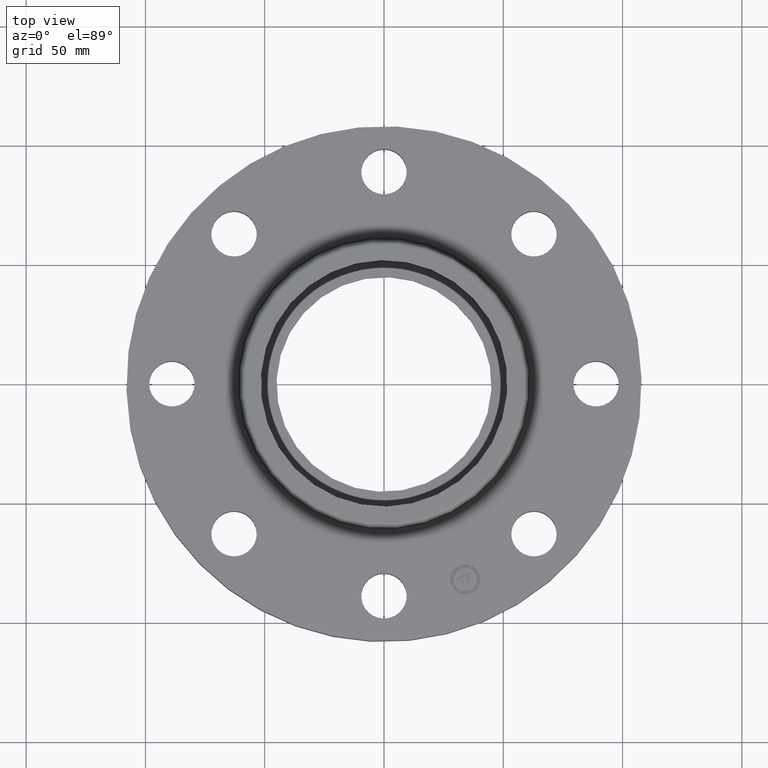
[diagram: clean part render]
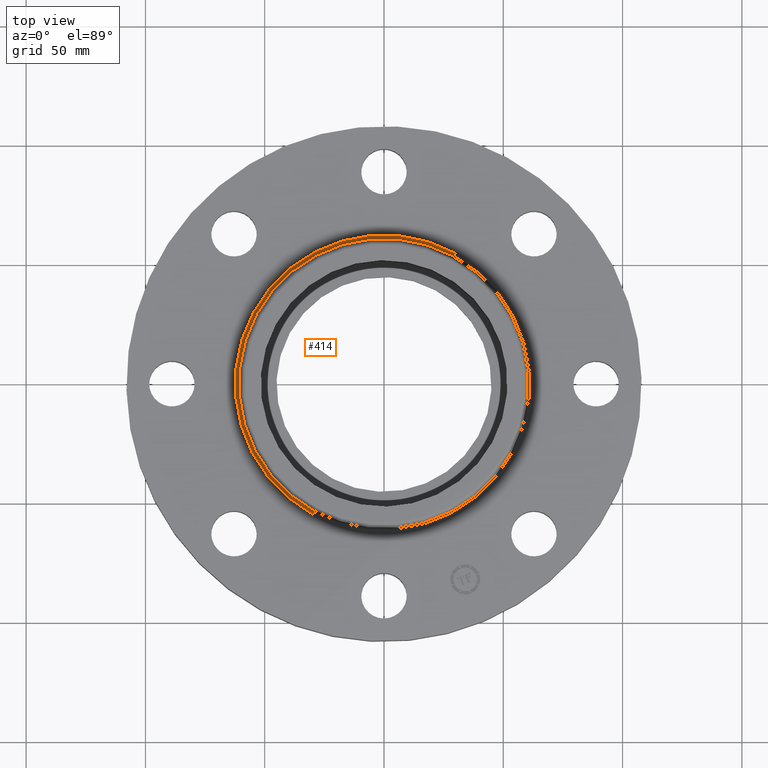
[diagram: same view with one face highlighted and labeled with its STEP entity id]
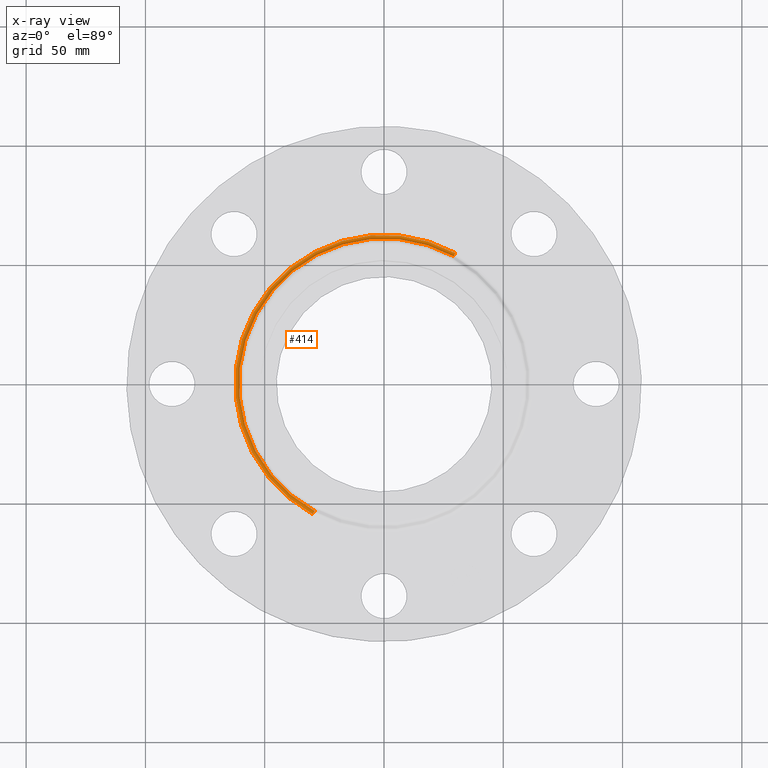
[diagram: x-ray of the same camera — body ghosted, the highlighted face saturated]
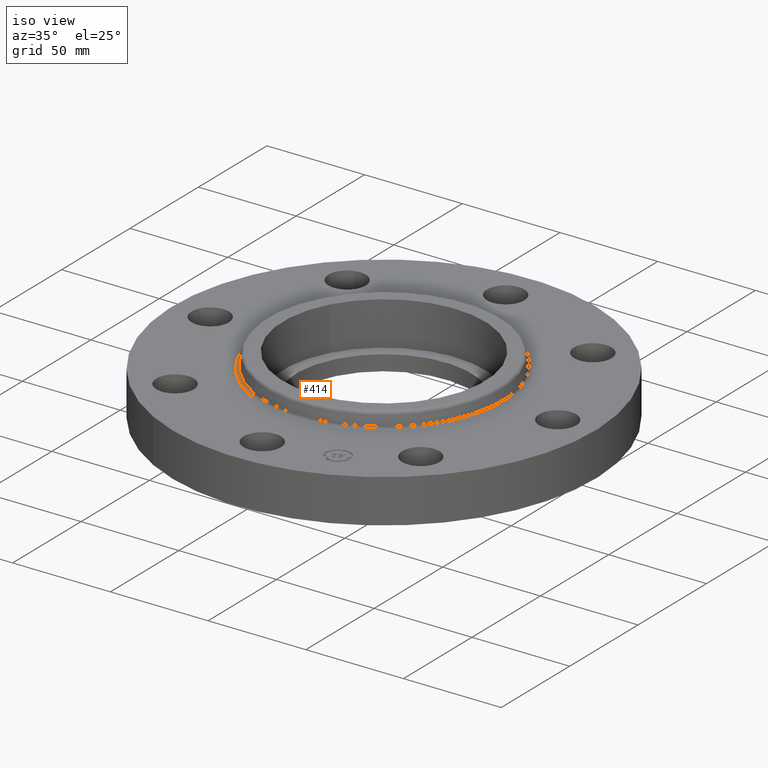
[diagram: same view with one face highlighted and labeled with its STEP entity id]
A machine part, top view. The second image highlights one B-rep face of the part: STEP entity #414.
The next image is the same camera in x-ray: the body ghosted, the highlighted face saturated — about 0% of this face is hidden behind the body in this view.
A second angle (iso view) of the same face is appended — the face is thin or edge-on in the first view.
In plain terms, the highlighted toroidal blend (fillet) surface has major radius 62.3658 mm and minor (blend) radius 1.524 mm.
Its self-contained STEP definition (entity closure, byte-faithful):
#361=AXIS2_PLACEMENT_3D('Torus Axis2P3D',#358,#359,#360) ;
#374=AXIS2_PLACEMENT_3D('Circle Axis2P3D',#372,#373,$) ;
#388=AXIS2_PLACEMENT_3D('Circle Axis2P3D',#386,#387,$) ;
#400=AXIS2_PLACEMENT_3D('Circle Axis2P3D',#398,#399,$) ;
#405=AXIS2_PLACEMENT_3D('Circle Axis2P3D',#403,#404,$) ;
#358=CARTESIAN_POINT('Axis2P3D Location',(0.,0.,0.940000000004)) ;
#367=CARTESIAN_POINT('Vertex',(1.17715556791,2.1547688136,0.880000000004)) ;
#369=CARTESIAN_POINT('Vertex',(-1.17715556791,-2.1547688136,0.880000000004)) ;
#372=CARTESIAN_POINT('Axis2P3D Location',(1.17715556791,2.1547688136,0.940000000004)) ;
#376=CARTESIAN_POINT('Vertex',(1.14882704866,2.10291380694,0.929581109344)) ;
#383=CARTESIAN_POINT('Vertex',(-1.14882704866,-2.10291380694,0.929581109344)) ;
#386=CARTESIAN_POINT('Axis2P3D Location',(-1.17715556791,-2.1547688136,0.940000000004)) ;
#398=CARTESIAN_POINT('Axis2P3D Location',(0.,0.,0.880000000004)) ;
#403=CARTESIAN_POINT('Axis2P3D Location',(0.,0.,0.929581109344)) ;
#359=DIRECTION('Axis2P3D Direction',(0.,0.,-0.0393700787402)) ;
#360=DIRECTION('Axis2P3D XDirection',(-0.0188750212049,-0.0345504945626,0.)) ;
#373=DIRECTION('Axis2P3D Direction',(-0.0345504945626,0.0188750212049,0.)) ;
#387=DIRECTION('Axis2P3D Direction',(0.0345504945626,-0.0188750212049,0.)) ;
#399=DIRECTION('Axis2P3D Direction',(0.,0.,-0.0393700787402)) ;
#404=DIRECTION('Axis2P3D Direction',(0.,0.,-0.0393700787402)) ;
#409=ORIENTED_EDGE('',*,*,#402,.F.) ;
#410=ORIENTED_EDGE('',*,*,#390,.T.) ;
#411=ORIENTED_EDGE('',*,*,#407,.T.) ;
#412=ORIENTED_EDGE('',*,*,#378,.F.) ;
#414=ADVANCED_FACE('PartBody',(#413),#362,.F.) ;
#375=CIRCLE('generated circle',#374,0.0600000000002) ;
#389=CIRCLE('generated circle',#388,0.0600000000002) ;
#401=CIRCLE('generated circle',#400,2.45534597788) ;
#406=CIRCLE('generated circle',#405,2.3962575127) ;
#362=TOROIDAL_SURFACE('homeo Torus',#361,2.45534597788,0.0600000000002) ;
#378=EDGE_CURVE('',#368,#377,#375,.T.) ;
#390=EDGE_CURVE('',#370,#384,#389,.T.) ;
#402=EDGE_CURVE('',#370,#368,#401,.T.) ;
#407=EDGE_CURVE('',#384,#377,#406,.T.) ;
#408=EDGE_LOOP('',(#409,#410,#411,#412)) ;
#413=FACE_OUTER_BOUND('',#408,.T.) ;
#368=VERTEX_POINT('',#367) ;
#370=VERTEX_POINT('',#369) ;
#377=VERTEX_POINT('',#376) ;
#384=VERTEX_POINT('',#383) ;